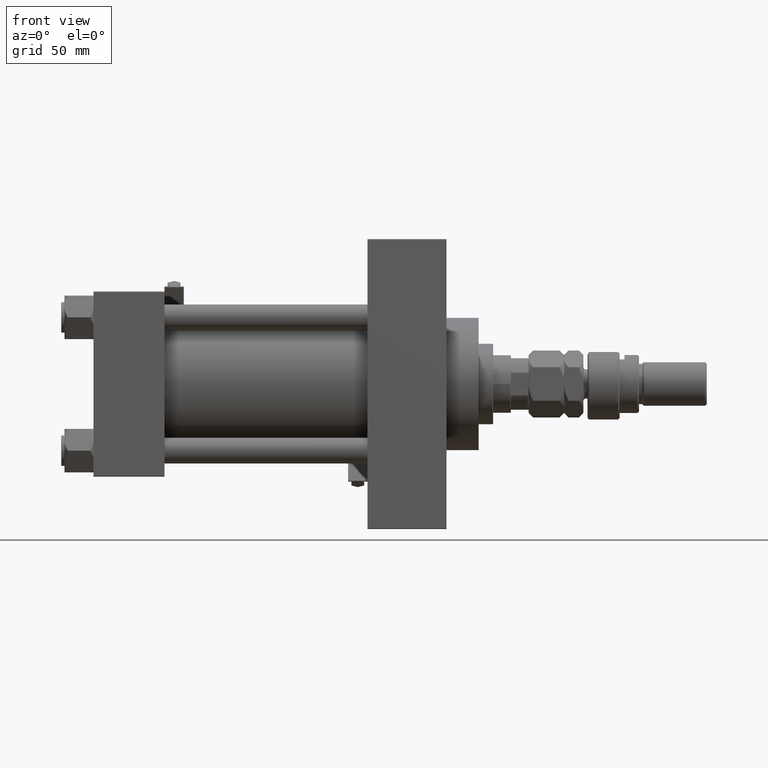
[diagram: clean part render]
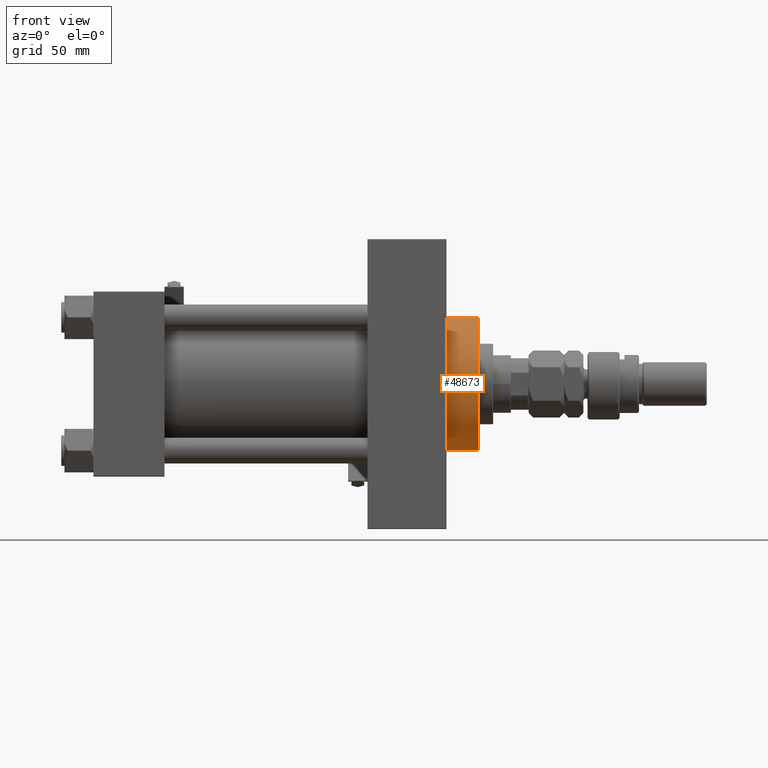
[diagram: same view with one face highlighted and labeled with its STEP entity id]
A machine part, front view. The second image highlights one B-rep face of the part: STEP entity #48673.
In plain terms, the highlighted cylindrical surface (partial cylindrical patch) has radius 41 mm, axis along (-1, -0, -0).
Its self-contained STEP definition (entity closure, byte-faithful):
#832 = ORIENTED_EDGE ( 'NONE', *, *, #34988, .T. ) ;
#1054 = CARTESIAN_POINT ( 'NONE',  ( 218.9999999999999716, 0.000000000000000000, 41.00000000000000000 ) ) ;
#2171 = CARTESIAN_POINT ( 'NONE',  ( 218.9999999999999716, 0.000000000000000000, 0.000000000000000000 ) ) ;
#4136 = CARTESIAN_POINT ( 'NONE',  ( 238.9999999999999716, 0.000000000000000000, 0.000000000000000000 ) ) ;
#5131 = VERTEX_POINT ( 'NONE', #10758 ) ;
#10343 = DIRECTION ( 'NONE',  ( 0.000000000000000000, 0.000000000000000000, -1.000000000000000000 ) ) ;
#10425 = EDGE_CURVE ( 'NONE', #48151, #5131, #47237, .T. ) ;
#10758 = CARTESIAN_POINT ( 'NONE',  ( 218.9999999999999716, 5.021051876504148963E-15, -41.00000000000000000 ) ) ;
#11490 = CARTESIAN_POINT ( 'NONE',  ( 238.9999999999999716, 5.021051876504148963E-15, -41.00000000000000000 ) ) ;
#11640 = CIRCLE ( 'NONE', #28333, 41.00000000000000000 ) ;
#15030 = CARTESIAN_POINT ( 'NONE',  ( 238.9999999999999716, 0.000000000000000000, 0.000000000000000000 ) ) ;
#15038 = VECTOR ( 'NONE', #32093, 1000.000000000000000 ) ;
#16344 = ORIENTED_EDGE ( 'NONE', *, *, #10425, .F. ) ;
#16654 = EDGE_CURVE ( 'NONE', #50671, #48151, #25248, .T. ) ;
#16666 = FACE_OUTER_BOUND ( 'NONE', #32308, .T. ) ;
#18223 = LINE ( 'NONE', #41953, #21968 ) ;
#21968 = VECTOR ( 'NONE', #22130, 1000.000000000000000 ) ;
#22130 = DIRECTION ( 'NONE',  ( -1.000000000000000000, -0.000000000000000000, -0.000000000000000000 ) ) ;
#23217 = CARTESIAN_POINT ( 'NONE',  ( 238.9999999999999716, 5.021051876504148963E-15, -41.00000000000000000 ) ) ;
#25248 = CIRCLE ( 'NONE', #36077, 41.00000000000000000 ) ;
#28333 = AXIS2_PLACEMENT_3D ( 'NONE', #2171, #37145, #37400 ) ;
#28732 = AXIS2_PLACEMENT_3D ( 'NONE', #4136, #48748, #44069 ) ;
#28747 = VERTEX_POINT ( 'NONE', #1054 ) ;
#30425 = ORIENTED_EDGE ( 'NONE', *, *, #16654, .F. ) ;
#31330 = CARTESIAN_POINT ( 'NONE',  ( 238.9999999999999716, 0.000000000000000000, 41.00000000000000000 ) ) ;
#32093 = DIRECTION ( 'NONE',  ( -1.000000000000000000, -0.000000000000000000, -0.000000000000000000 ) ) ;
#32308 = EDGE_LOOP ( 'NONE', ( #16344, #30425, #38550, #832 ) ) ;
#34341 = DIRECTION ( 'NONE',  ( 1.000000000000000000, 0.000000000000000000, 0.000000000000000000 ) ) ;
#34988 = EDGE_CURVE ( 'NONE', #28747, #5131, #11640, .T. ) ;
#36077 = AXIS2_PLACEMENT_3D ( 'NONE', #15030, #34341, #10343 ) ;
#37145 = DIRECTION ( 'NONE',  ( 1.000000000000000000, 0.000000000000000000, 0.000000000000000000 ) ) ;
#37400 = DIRECTION ( 'NONE',  ( 0.000000000000000000, 0.000000000000000000, -1.000000000000000000 ) ) ;
#38550 = ORIENTED_EDGE ( 'NONE', *, *, #45465, .T. ) ;
#41953 = CARTESIAN_POINT ( 'NONE',  ( 238.9999999999999716, 0.000000000000000000, 41.00000000000000000 ) ) ;
#44069 = DIRECTION ( 'NONE',  ( 0.000000000000000000, 0.000000000000000000, 1.000000000000000000 ) ) ;
#45465 = EDGE_CURVE ( 'NONE', #50671, #28747, #18223, .T. ) ;
#47237 = LINE ( 'NONE', #11490, #15038 ) ;
#48151 = VERTEX_POINT ( 'NONE', #23217 ) ;
#48233 = CYLINDRICAL_SURFACE ( 'NONE', #28732, 41.00000000000000000 ) ;
#48673 = ADVANCED_FACE ( 'NONE', ( #16666 ), #48233, .T. ) ;
#48748 = DIRECTION ( 'NONE',  ( -1.000000000000000000, -0.000000000000000000, -0.000000000000000000 ) ) ;
#50671 = VERTEX_POINT ( 'NONE', #31330 ) ;